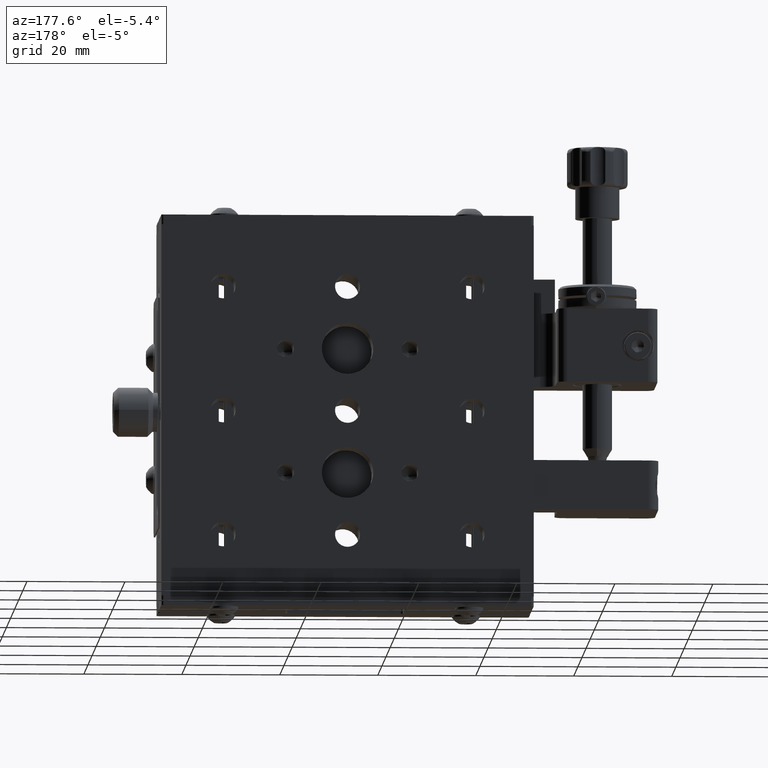
[diagram: clean part render]
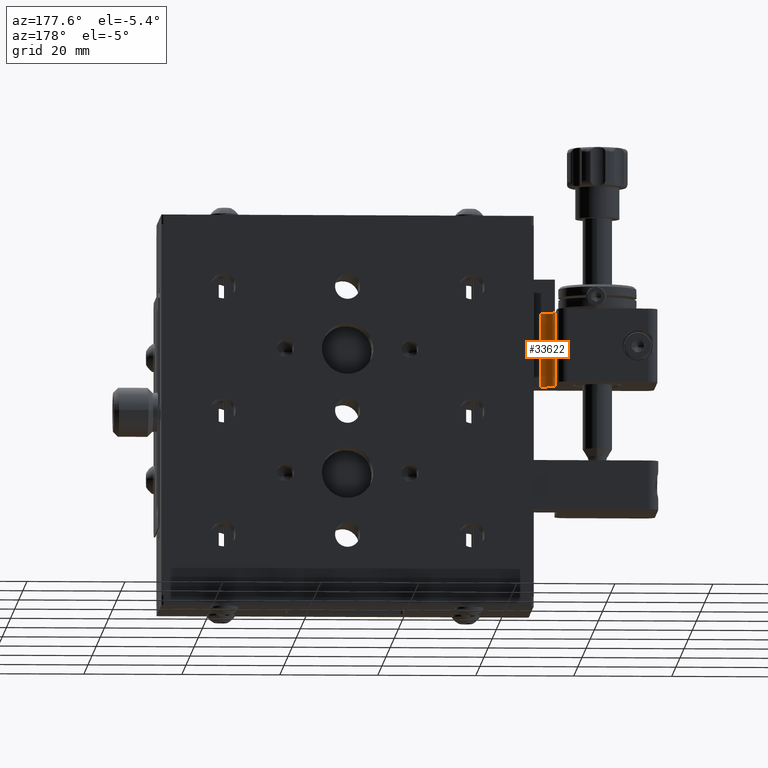
[diagram: same view with one face highlighted and labeled with its STEP entity id]
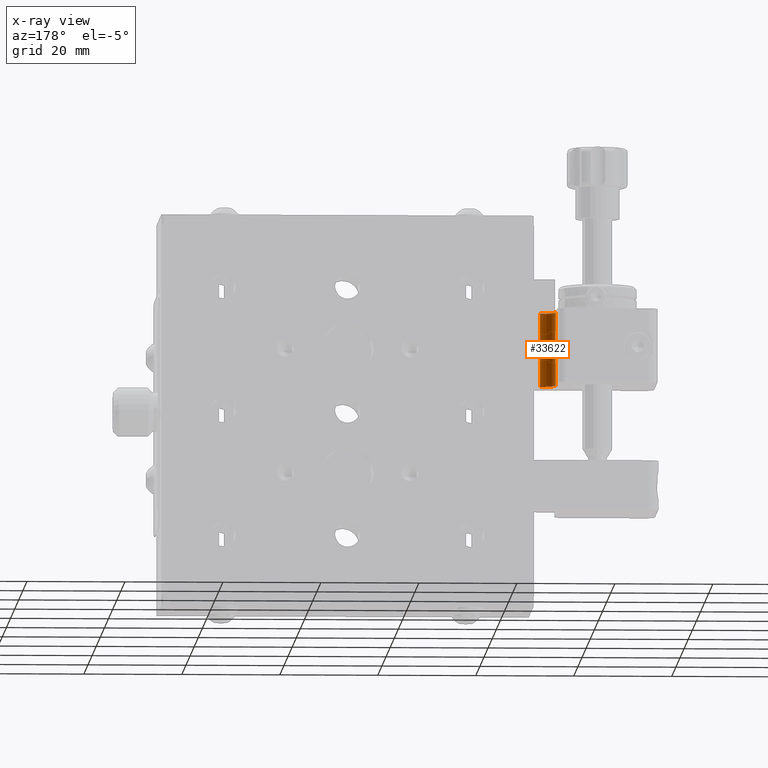
[diagram: x-ray of the same camera — body ghosted, the highlighted face saturated]
A machine part, auxiliary view. The second image highlights one B-rep face of the part: STEP entity #33622.
The next image is the same camera in x-ray: the body ghosted, the highlighted face saturated — about 0% of this face is hidden behind the body in this view.
In plain terms, the highlighted cylindrical surface (edge-blend (fillet) strip) has radius 3 mm, axis along (0, -0, 1).
Its self-contained STEP definition (entity closure, byte-faithful):
#1224 = DIRECTION ( 'NONE',  ( 3.538501282865115300E-016, -5.551115123126275700E-017, 1.000000000000000000 ) ) ;
#2774 = CARTESIAN_POINT ( 'NONE',  ( -29.25019253063125600, -7.154134368212807800, 117.6000000000000400 ) ) ;
#7875 = CYLINDRICAL_SURFACE ( 'NONE', #11596, 2.999999999999999100 ) ;
#10598 = CARTESIAN_POINT ( 'NONE',  ( -29.25019253063124900, -7.154134368212804200, 132.6000000000002200 ) ) ;
#10791 = CARTESIAN_POINT ( 'NONE',  ( -29.25019253063124900, -4.154134368212809600, 139.6000000000002200 ) ) ;
#11433 = CARTESIAN_POINT ( 'NONE',  ( -32.25019253063125300, -4.154134368212802500, 117.6000000000000500 ) ) ;
#11596 = AXIS2_PLACEMENT_3D ( 'NONE', #10791, #41762, #45435 ) ;
#16713 = EDGE_CURVE ( 'NONE', #57147, #33015, #29370, .T. ) ;
#17849 = CARTESIAN_POINT ( 'NONE',  ( -32.25019253063125300, -4.154134368212802500, 117.6000000000000400 ) ) ;
#18524 = AXIS2_PLACEMENT_3D ( 'NONE', #36843, #1224, #28018 ) ;
#19131 = CARTESIAN_POINT ( 'NONE',  ( -29.25019253063124900, -4.154134368212783800, 132.6000000000002200 ) ) ;
#22866 = VECTOR ( 'NONE', #41955, 1000.000000000000000 ) ;
#23465 = VERTEX_POINT ( 'NONE', #57357 ) ;
#24156 = ORIENTED_EDGE ( 'NONE', *, *, #37005, .F. ) ;
#24830 = DIRECTION ( 'NONE',  ( -3.538501282865115300E-016, 5.551115123126275700E-017, -1.000000000000000000 ) ) ;
#28018 = DIRECTION ( 'NONE',  ( -1.000000000000000000, -1.445602896647337900E-015, 0.0000000000000000000 ) ) ;
#29370 = LINE ( 'NONE', #11433, #54244 ) ;
#29437 = EDGE_CURVE ( 'NONE', #33015, #43664, #46587, .T. ) ;
#30382 = ORIENTED_EDGE ( 'NONE', *, *, #35954, .F. ) ;
#33015 = VERTEX_POINT ( 'NONE', #17849 ) ;
#33622 = ADVANCED_FACE ( 'NONE', ( #36361 ), #7875, .F. ) ;
#34088 = ORIENTED_EDGE ( 'NONE', *, *, #29437, .F. ) ;
#34614 = LINE ( 'NONE', #10598, #22866 ) ;
#35954 = EDGE_CURVE ( 'NONE', #23465, #57147, #54437, .T. ) ;
#36361 = FACE_OUTER_BOUND ( 'NONE', #52324, .T. ) ;
#36843 = CARTESIAN_POINT ( 'NONE',  ( -29.25019253063125600, -4.154134368212807800, 117.6000000000000500 ) ) ;
#37005 = EDGE_CURVE ( 'NONE', #43664, #23465, #34614, .T. ) ;
#41514 = DIRECTION ( 'NONE',  ( -4.807811143335941600E-016, 5.551115123126258500E-017, -1.000000000000000000 ) ) ;
#41762 = DIRECTION ( 'NONE',  ( 3.538501282865115300E-016, -5.551115123126275700E-017, 1.000000000000000000 ) ) ;
#41955 = DIRECTION ( 'NONE',  ( 3.538501282865115300E-016, -5.551115123126275700E-017, 1.000000000000000000 ) ) ;
#43664 = VERTEX_POINT ( 'NONE', #2774 ) ;
#45435 = DIRECTION ( 'NONE',  ( 1.000000000000000000, 1.445602896647339700E-015, 0.0000000000000000000 ) ) ;
#46587 = CIRCLE ( 'NONE', #18524, 3.000000000000002700 ) ;
#47441 = ORIENTED_EDGE ( 'NONE', *, *, #16713, .F. ) ;
#50008 = DIRECTION ( 'NONE',  ( -1.000000000000000000, -1.445602896647337900E-015, 0.0000000000000000000 ) ) ;
#52324 = EDGE_LOOP ( 'NONE', ( #30382, #24156, #34088, #47441 ) ) ;
#53972 = AXIS2_PLACEMENT_3D ( 'NONE', #19131, #41514, #50008 ) ;
#54244 = VECTOR ( 'NONE', #24830, 1000.000000000000000 ) ;
#54437 = CIRCLE ( 'NONE', #53972, 3.000000000000002700 ) ;
#56658 = CARTESIAN_POINT ( 'NONE',  ( -32.25019253063124600, -4.154134368212788300, 132.6000000000002200 ) ) ;
#57147 = VERTEX_POINT ( 'NONE', #56658 ) ;
#57357 = CARTESIAN_POINT ( 'NONE',  ( -29.25019253063124900, -7.154134368212804200, 132.6000000000002200 ) ) ;